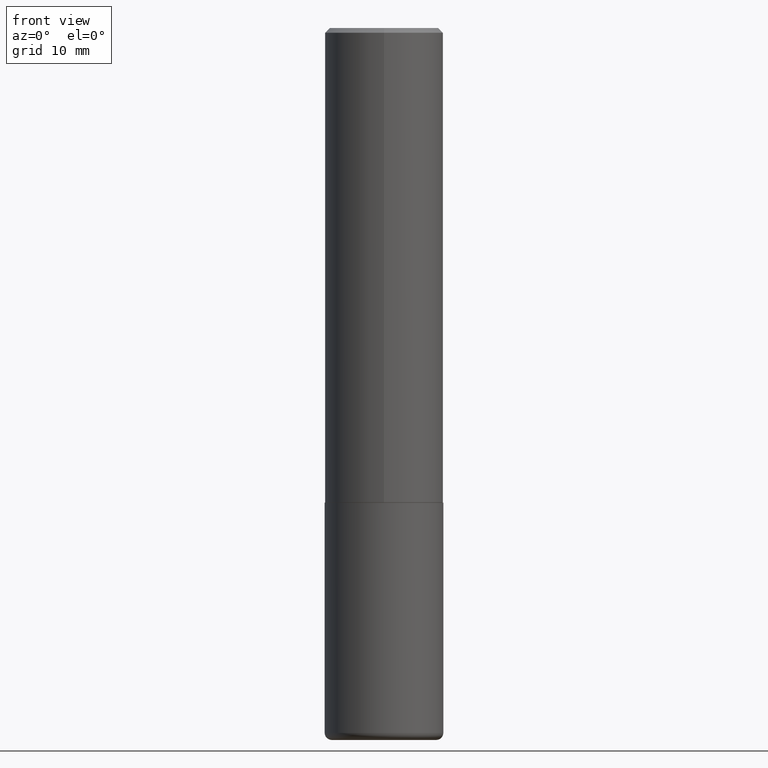
[diagram: clean part render]
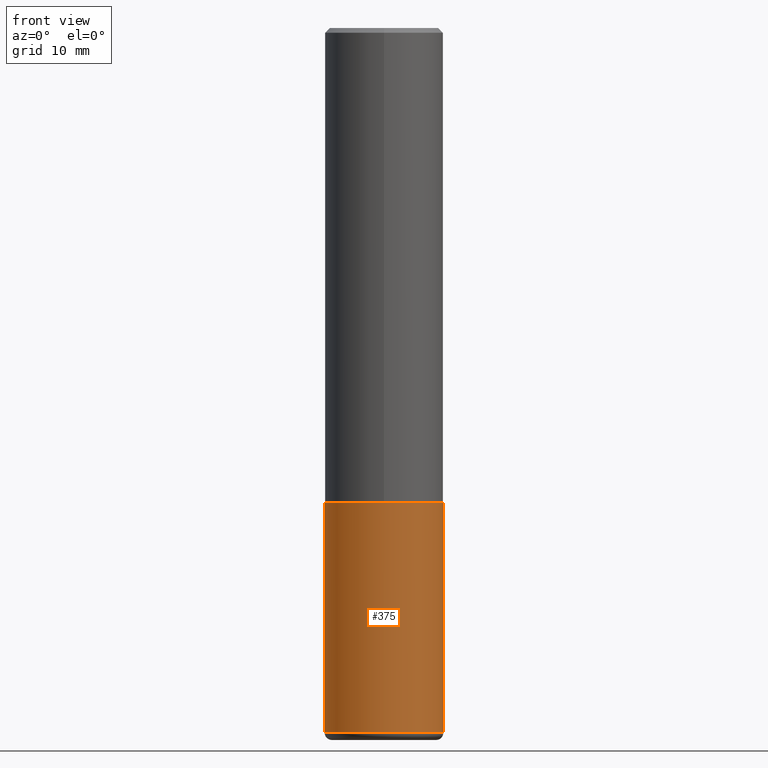
[diagram: same view with one face highlighted and labeled with its STEP entity id]
A machine part, front view. The second image highlights one B-rep face of the part: STEP entity #375.
In plain terms, the highlighted cylindrical surface (partial cylindrical patch) has radius 6.35 mm, axis along (-0, 0, 1).
Its self-contained STEP definition (entity closure, byte-faithful):
#26 = CARTESIAN_POINT ( 'NONE',  ( -0.2500000000000000000, -6.899974287624967004E-15, -2.000000000000000444 ) ) ;
#30 = VERTEX_POINT ( 'NONE', #388 ) ;
#43 = AXIS2_PLACEMENT_3D ( 'NONE', #284, #220, #382 ) ;
#59 = CIRCLE ( 'NONE', #325, 0.2500000000000000000 ) ;
#69 = LINE ( 'NONE', #216, #79 ) ;
#79 = VECTOR ( 'NONE', #136, 39.37007874015748143 ) ;
#122 = DIRECTION ( 'NONE',  ( -2.445468806185136597E-29, 3.491481338843145583E-15, 1.000000000000000000 ) ) ;
#128 = CARTESIAN_POINT ( 'NONE',  ( -0.2500000000000000000, 1.776356839400250465E-15, -1.229733772563726445E-29 ) ) ;
#130 = EDGE_CURVE ( 'NONE', #315, #30, #59, .T. ) ;
#136 = DIRECTION ( 'NONE',  ( -2.445468806185136877E-29, 3.491481338843145188E-15, 1.000000000000000000 ) ) ;
#142 = EDGE_LOOP ( 'NONE', ( #162, #322, #418, #255 ) ) ;
#162 = ORIENTED_EDGE ( 'NONE', *, *, #305, .F. ) ;
#167 = VERTEX_POINT ( 'NONE', #241 ) ;
#172 = CARTESIAN_POINT ( 'NONE',  ( 4.890937612370273754E-29, -6.982962677686291954E-15, -2.000000000000000444 ) ) ;
#179 = FACE_OUTER_BOUND ( 'NONE', #142, .T. ) ;
#183 = LINE ( 'NONE', #128, #248 ) ;
#185 = EDGE_CURVE ( 'NONE', #323, #167, #285, .T. ) ;
#216 = CARTESIAN_POINT ( 'NONE',  ( 0.2500000000000000000, -1.745740669421566678E-15, 1.219044193948983948E-29 ) ) ;
#220 = DIRECTION ( 'NONE',  ( -2.445468806185136597E-29, 3.491481338843145583E-15, 1.000000000000000000 ) ) ;
#238 = DIRECTION ( 'NONE',  ( 1.000000000000000000, -6.982962677686270655E-15, 0.000000000000000000 ) ) ;
#241 = CARTESIAN_POINT ( 'NONE',  ( 0.2500000000000000000, -8.728703347107858632E-15, -2.000000000000000444 ) ) ;
#244 = CARTESIAN_POINT ( 'NONE',  ( 7.263042354369856275E-29, -1.036969957636414298E-14, -2.970000000000000195 ) ) ;
#248 = VECTOR ( 'NONE', #279, 39.37007874015748143 ) ;
#255 = ORIENTED_EDGE ( 'NONE', *, *, #185, .F. ) ;
#257 = CARTESIAN_POINT ( 'NONE',  ( -0.2499999999999998612, -8.593342736963892519E-15, -2.970000000000000195 ) ) ;
#279 = DIRECTION ( 'NONE',  ( -2.445468806185136877E-29, 3.491481338843145188E-15, 1.000000000000000000 ) ) ;
#280 = CYLINDRICAL_SURFACE ( 'NONE', #43, 0.2500000000000000000 ) ;
#284 = CARTESIAN_POINT ( 'NONE',  ( 0.000000000000000000, 0.000000000000000000, 0.000000000000000000 ) ) ;
#285 = CIRCLE ( 'NONE', #398, 0.2500000000000000000 ) ;
#305 = EDGE_CURVE ( 'NONE', #315, #323, #183, .T. ) ;
#315 = VERTEX_POINT ( 'NONE', #257 ) ;
#322 = ORIENTED_EDGE ( 'NONE', *, *, #130, .T. ) ;
#323 = VERTEX_POINT ( 'NONE', #26 ) ;
#325 = AXIS2_PLACEMENT_3D ( 'NONE', #244, #122, #238 ) ;
#348 = EDGE_CURVE ( 'NONE', #30, #167, #69, .T. ) ;
#367 = DIRECTION ( 'NONE',  ( 1.000000000000000000, -6.982962677686266711E-15, 0.000000000000000000 ) ) ;
#375 = ADVANCED_FACE ( 'NONE', ( #179 ), #280, .T. ) ;
#382 = DIRECTION ( 'NONE',  ( 1.000000000000000000, -6.982962677686266711E-15, 4.876176775795935793E-29 ) ) ;
#388 = CARTESIAN_POINT ( 'NONE',  ( 0.2499999999999998612, -1.211544024578571124E-14, -2.970000000000000195 ) ) ;
#396 = DIRECTION ( 'NONE',  ( -2.445468806185136597E-29, 3.491481338843145583E-15, 1.000000000000000000 ) ) ;
#398 = AXIS2_PLACEMENT_3D ( 'NONE', #172, #396, #367 ) ;
#418 = ORIENTED_EDGE ( 'NONE', *, *, #348, .T. ) ;